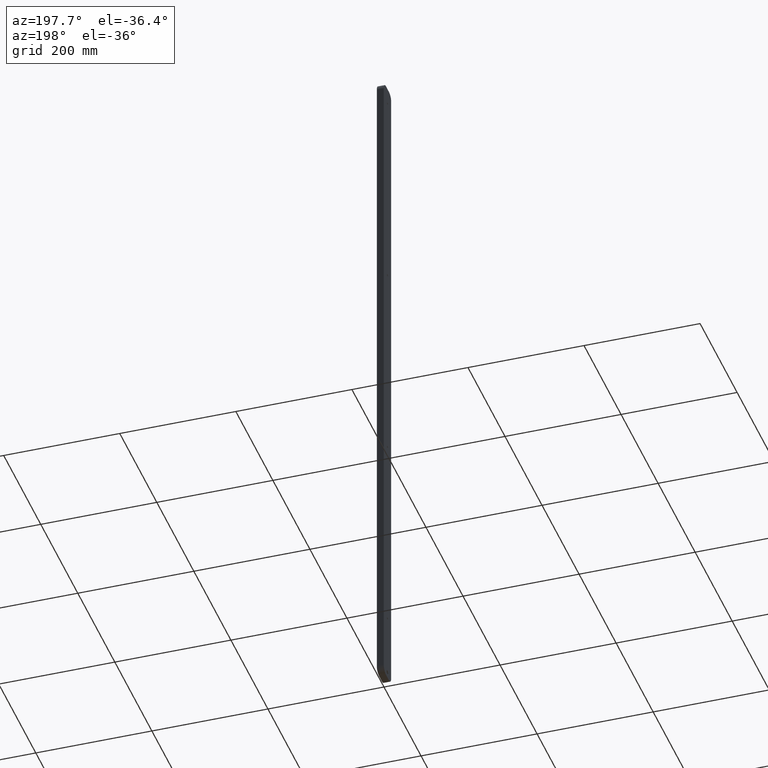
[diagram: clean part render]
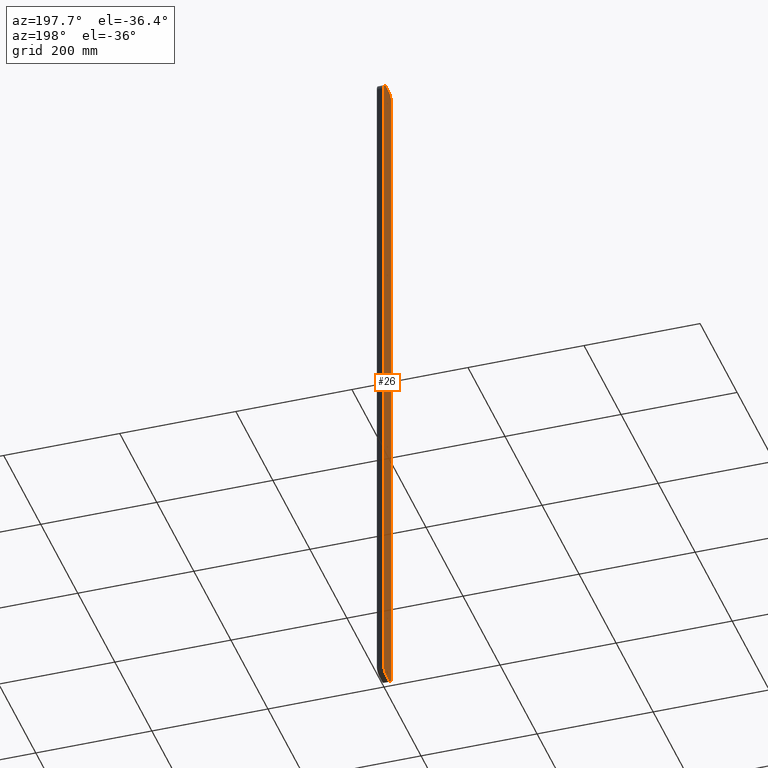
[diagram: same view with one face highlighted and labeled with its STEP entity id]
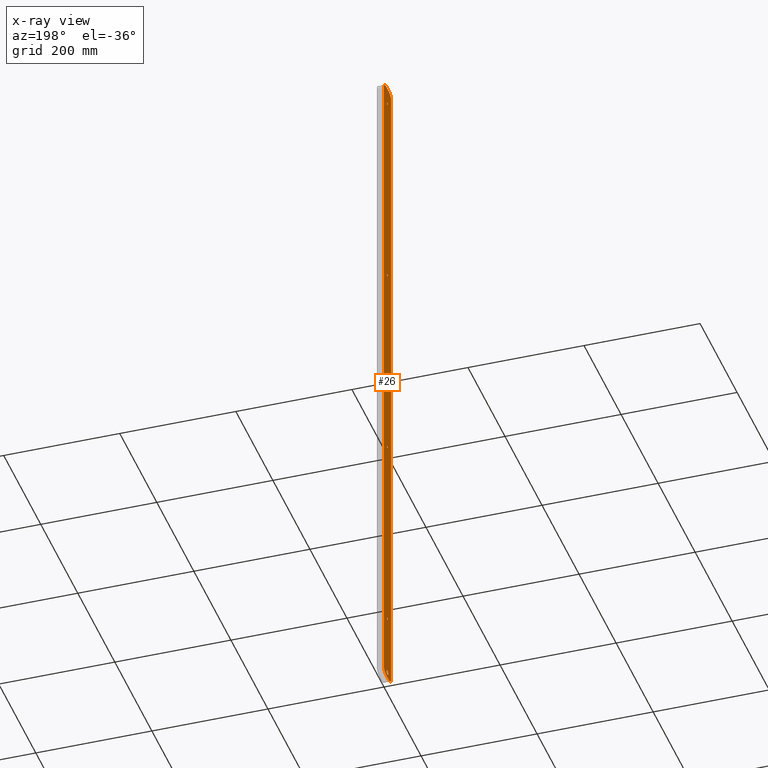
[diagram: x-ray of the same camera — body ghosted, the highlighted face saturated]
A machine part, auxiliary view. The second image highlights one B-rep face of the part: STEP entity #26.
The next image is the same camera in x-ray: the body ghosted, the highlighted face saturated — about 0% of this face is hidden behind the body in this view.
In plain terms, the highlighted planar face has unit normal (1, 0, -0).
Its self-contained STEP definition (entity closure, byte-faithful):
#4 = AXIS2_PLACEMENT_3D ( 'NONE', #446, #488, #582 ) ;
#9 = AXIS2_PLACEMENT_3D ( 'NONE', #888, #763, #761 ) ;
#20 = AXIS2_PLACEMENT_3D ( 'NONE', #587, #573, #344 ) ;
#24 = CIRCLE ( 'NONE', #749, 12.00000000000000000 ) ;
#26 = ADVANCED_FACE ( 'NONE', ( #642, #796, #862, #837, #693, #780 ), #193, .F. ) ;
#31 = CARTESIAN_POINT ( 'NONE',  ( -5.999999999999997300, 8.000000000000000000, -600.0000000000000000 ) ) ;
#39 = AXIS2_PLACEMENT_3D ( 'NONE', #64, #412, #315 ) ;
#50 = DIRECTION ( 'NONE',  ( -1.000000000000000000, -1.301042606982605300E-016, 0.0000000000000000000 ) ) ;
#55 = VECTOR ( 'NONE', #217, 1000.000000000000000 ) ;
#56 = CARTESIAN_POINT ( 'NONE',  ( -5.999999999999996400, -5.356962043600925000E-016, -132.0000000000000000 ) ) ;
#59 = CIRCLE ( 'NONE', #561, 2.000000000000001800 ) ;
#64 = CARTESIAN_POINT ( 'NONE',  ( -5.999999999999999100, 20.00000000000000000, 600.0000000000000000 ) ) ;
#71 = CARTESIAN_POINT ( 'NONE',  ( -5.999999999999993800, -20.00000000000000000, -588.0000000000000000 ) ) ;
#73 = DIRECTION ( 'NONE',  ( -1.445602896647339200E-016, 1.000000000000000000, 0.0000000000000000000 ) ) ;
#80 = CARTESIAN_POINT ( 'NONE',  ( -5.999999999999995600, -3.999999999999993300, -590.0000000000000000 ) ) ;
#81 = VERTEX_POINT ( 'NONE', #31 ) ;
#88 = DIRECTION ( 'NONE',  ( -1.000000000000000000, -1.301042606982605300E-016, 0.0000000000000000000 ) ) ;
#90 = DIRECTION ( 'NONE',  ( 0.0000000000000000000, 0.0000000000000000000, 1.000000000000000000 ) ) ;
#93 = DIRECTION ( 'NONE',  ( 1.301042606982605300E-016, -1.000000000000000000, 0.0000000000000000000 ) ) ;
#106 = VECTOR ( 'NONE', #758, 1000.000000000000000 ) ;
#108 = LINE ( 'NONE', #337, #106 ) ;
#117 = VERTEX_POINT ( 'NONE', #580 ) ;
#131 = LINE ( 'NONE', #163, #612 ) ;
#138 = CARTESIAN_POINT ( 'NONE',  ( -5.999999999999996400, -7.806255641895627000E-016, -477.9999999999998900 ) ) ;
#142 = CIRCLE ( 'NONE', #678, 2.000000000000001800 ) ;
#144 = CIRCLE ( 'NONE', #250, 2.000000000000001800 ) ;
#150 = DIRECTION ( 'NONE',  ( -1.000000000000000000, -0.0000000000000000000, -0.0000000000000000000 ) ) ;
#155 = CIRCLE ( 'NONE', #785, 12.00000000000000000 ) ;
#156 = ORIENTED_EDGE ( 'NONE', *, *, #536, .F. ) ;
#163 = CARTESIAN_POINT ( 'NONE',  ( -5.999999999999999100, 20.00000000000000000, 600.0000000000000000 ) ) ;
#182 = CIRCLE ( 'NONE', #4, 2.000000000000001800 ) ;
#191 = EDGE_CURVE ( 'NONE', #547, #117, #828, .T. ) ;
#193 = PLANE ( 'NONE',  #39 ) ;
#195 = CARTESIAN_POINT ( 'NONE',  ( -5.999999999999996400, -7.806255641895628000E-016, -590.0000000000000000 ) ) ;
#198 = EDGE_CURVE ( 'NONE', #586, #356, #743, .T. ) ;
#214 = CARTESIAN_POINT ( 'NONE',  ( -5.999999999999996400, -7.806255641895627000E-016, 572.0000000000000000 ) ) ;
#217 = DIRECTION ( 'NONE',  ( -0.0000000000000000000, -0.0000000000000000000, -1.000000000000000000 ) ) ;
#220 = DIRECTION ( 'NONE',  ( -1.000000000000000000, -1.301042606982605300E-016, 0.0000000000000000000 ) ) ;
#225 = DIRECTION ( 'NONE',  ( -2.168404344971013100E-016, 1.000000000000000000, 0.0000000000000000000 ) ) ;
#233 = LINE ( 'NONE', #450, #55 ) ;
#246 = CIRCLE ( 'NONE', #258, 2.000000000000001800 ) ;
#250 = AXIS2_PLACEMENT_3D ( 'NONE', #404, #551, #646 ) ;
#253 = VERTEX_POINT ( 'NONE', #663 ) ;
#258 = AXIS2_PLACEMENT_3D ( 'NONE', #876, #451, #90 ) ;
#259 = CARTESIAN_POINT ( 'NONE',  ( -5.999999999999995600, -8.000000000000000000, 588.0000000000000000 ) ) ;
#269 = ORIENTED_EDGE ( 'NONE', *, *, #499, .F. ) ;
#285 = CIRCLE ( 'NONE', #650, 2.000000000000001800 ) ;
#289 = DIRECTION ( 'NONE',  ( -2.168404344971013100E-016, 1.000000000000000000, 0.0000000000000000000 ) ) ;
#300 = CARTESIAN_POINT ( 'NONE',  ( -5.999999999999999100, 20.00000000000000000, -600.0000000000000000 ) ) ;
#304 = ORIENTED_EDGE ( 'NONE', *, *, #198, .F. ) ;
#311 = EDGE_CURVE ( 'NONE', #570, #611, #142, .T. ) ;
#314 = EDGE_CURVE ( 'NONE', #547, #716, #108, .T. ) ;
#315 = DIRECTION ( 'NONE',  ( -1.301042606982605300E-016, 1.000000000000000000, 0.0000000000000000000 ) ) ;
#321 = EDGE_CURVE ( 'NONE', #611, #570, #144, .T. ) ;
#325 = VERTEX_POINT ( 'NONE', #214 ) ;
#334 = VERTEX_POINT ( 'NONE', #891 ) ;
#336 = ORIENTED_EDGE ( 'NONE', *, *, #369, .F. ) ;
#337 = CARTESIAN_POINT ( 'NONE',  ( -5.999999999999999100, 20.00000000000000000, 600.0000000000000000 ) ) ;
#338 = ORIENTED_EDGE ( 'NONE', *, *, #530, .F. ) ;
#339 = DIRECTION ( 'NONE',  ( 0.0000000000000000000, 0.0000000000000000000, 1.000000000000000000 ) ) ;
#344 = DIRECTION ( 'NONE',  ( 0.0000000000000000000, 0.0000000000000000000, 1.000000000000000000 ) ) ;
#356 = VERTEX_POINT ( 'NONE', #483 ) ;
#362 = EDGE_CURVE ( 'NONE', #428, #716, #24, .T. ) ;
#369 = EDGE_CURVE ( 'NONE', #325, #746, #59, .T. ) ;
#382 = CARTESIAN_POINT ( 'NONE',  ( -5.999999999999993800, -20.00000000000000000, 588.0000000000000000 ) ) ;
#388 = EDGE_LOOP ( 'NONE', ( #424, #156 ) ) ;
#396 = ORIENTED_EDGE ( 'NONE', *, *, #314, .F. ) ;
#404 = CARTESIAN_POINT ( 'NONE',  ( -5.999999999999996400, -7.806255641895627000E-016, -130.0000000000000000 ) ) ;
#405 = ORIENTED_EDGE ( 'NONE', *, *, #608, .T. ) ;
#411 = EDGE_LOOP ( 'NONE', ( #602, #269 ) ) ;
#412 = DIRECTION ( 'NONE',  ( 1.000000000000000000, 1.301042606982605300E-016, -0.0000000000000000000 ) ) ;
#414 = ORIENTED_EDGE ( 'NONE', *, *, #502, .F. ) ;
#415 = DIRECTION ( 'NONE',  ( -1.000000000000000000, -0.0000000000000000000, -0.0000000000000000000 ) ) ;
#416 = VERTEX_POINT ( 'NONE', #71 ) ;
#418 = DIRECTION ( 'NONE',  ( 0.0000000000000000000, 0.0000000000000000000, 1.000000000000000000 ) ) ;
#424 = ORIENTED_EDGE ( 'NONE', *, *, #493, .F. ) ;
#427 = VERTEX_POINT ( 'NONE', #592 ) ;
#428 = VERTEX_POINT ( 'NONE', #382 ) ;
#434 = DIRECTION ( 'NONE',  ( -1.000000000000000000, -0.0000000000000000000, -0.0000000000000000000 ) ) ;
#443 = EDGE_CURVE ( 'NONE', #786, #416, #155, .T. ) ;
#445 = ORIENTED_EDGE ( 'NONE', *, *, #717, .T. ) ;
#446 = CARTESIAN_POINT ( 'NONE',  ( -5.999999999999996400, -7.806255641895627000E-016, 570.0000000000000000 ) ) ;
#449 = CARTESIAN_POINT ( 'NONE',  ( -5.999999999999996400, -5.356962043600925000E-016, 568.0000000000000000 ) ) ;
#450 = CARTESIAN_POINT ( 'NONE',  ( -5.999999999999993800, -20.00000000000000000, 600.0000000000000000 ) ) ;
#451 = DIRECTION ( 'NONE',  ( -1.000000000000000000, -0.0000000000000000000, -0.0000000000000000000 ) ) ;
#460 = ORIENTED_EDGE ( 'NONE', *, *, #443, .T. ) ;
#462 = DIRECTION ( 'NONE',  ( -0.0000000000000000000, -0.0000000000000000000, -1.000000000000000000 ) ) ;
#471 = DIRECTION ( 'NONE',  ( -1.000000000000000000, -1.301042606982605300E-016, 0.0000000000000000000 ) ) ;
#475 = EDGE_LOOP ( 'NONE', ( #336, #414 ) ) ;
#483 = CARTESIAN_POINT ( 'NONE',  ( -5.999999999999996400, -5.356962043600925000E-016, -481.9999999999998900 ) ) ;
#487 = CARTESIAN_POINT ( 'NONE',  ( -5.999999999999996400, -7.806255641895627000E-016, 570.0000000000000000 ) ) ;
#488 = DIRECTION ( 'NONE',  ( -1.000000000000000000, -0.0000000000000000000, -0.0000000000000000000 ) ) ;
#493 = EDGE_CURVE ( 'NONE', #721, #782, #626, .T. ) ;
#499 = EDGE_CURVE ( 'NONE', #253, #427, #285, .T. ) ;
#502 = EDGE_CURVE ( 'NONE', #746, #325, #182, .T. ) ;
#505 = CARTESIAN_POINT ( 'NONE',  ( -5.999999999999997300, 8.000000000000000000, -588.0000000000000000 ) ) ;
#516 = CARTESIAN_POINT ( 'NONE',  ( -5.999999999999997300, 3.999999999999991600, -590.0000000000000000 ) ) ;
#519 = CIRCLE ( 'NONE', #603, 12.00000000000000000 ) ;
#522 = CARTESIAN_POINT ( 'NONE',  ( -5.999999999999996400, -7.806255641895627000E-016, -128.0000000000000000 ) ) ;
#530 = EDGE_CURVE ( 'NONE', #356, #586, #607, .T. ) ;
#536 = EDGE_CURVE ( 'NONE', #782, #721, #811, .T. ) ;
#542 = EDGE_LOOP ( 'NONE', ( #396, #544, #877, #445, #405, #460, #552, #822 ) ) ;
#544 = ORIENTED_EDGE ( 'NONE', *, *, #191, .T. ) ;
#547 = VERTEX_POINT ( 'NONE', #793 ) ;
#551 = DIRECTION ( 'NONE',  ( -1.000000000000000000, -0.0000000000000000000, -0.0000000000000000000 ) ) ;
#552 = ORIENTED_EDGE ( 'NONE', *, *, #596, .F. ) ;
#561 = AXIS2_PLACEMENT_3D ( 'NONE', #487, #415, #895 ) ;
#570 = VERTEX_POINT ( 'NONE', #56 ) ;
#573 = DIRECTION ( 'NONE',  ( -1.000000000000000000, -0.0000000000000000000, -0.0000000000000000000 ) ) ;
#580 = CARTESIAN_POINT ( 'NONE',  ( -5.999999999999999100, 20.00000000000000000, 588.0000000000000000 ) ) ;
#582 = DIRECTION ( 'NONE',  ( 0.0000000000000000000, 0.0000000000000000000, 1.000000000000000000 ) ) ;
#585 = AXIS2_PLACEMENT_3D ( 'NONE', #733, #714, #418 ) ;
#586 = VERTEX_POINT ( 'NONE', #138 ) ;
#587 = CARTESIAN_POINT ( 'NONE',  ( -5.999999999999996400, -7.806255641895627000E-016, -479.9999999999998900 ) ) ;
#592 = CARTESIAN_POINT ( 'NONE',  ( -5.999999999999996400, -7.806255641895627000E-016, 221.9999999999999700 ) ) ;
#596 = EDGE_CURVE ( 'NONE', #428, #416, #233, .T. ) ;
#602 = ORIENTED_EDGE ( 'NONE', *, *, #826, .F. ) ;
#603 = AXIS2_PLACEMENT_3D ( 'NONE', #505, #220, #730 ) ;
#604 = CARTESIAN_POINT ( 'NONE',  ( -5.999999999999995600, -8.000000000000000000, 600.0000000000000000 ) ) ;
#606 = VECTOR ( 'NONE', #93, 1000.000000000000000 ) ;
#607 = CIRCLE ( 'NONE', #585, 2.000000000000001800 ) ;
#608 = EDGE_CURVE ( 'NONE', #81, #786, #665, .T. ) ;
#610 = ORIENTED_EDGE ( 'NONE', *, *, #311, .F. ) ;
#611 = VERTEX_POINT ( 'NONE', #522 ) ;
#612 = VECTOR ( 'NONE', #462, 1000.000000000000000 ) ;
#613 = AXIS2_PLACEMENT_3D ( 'NONE', #861, #851, #289 ) ;
#621 = CARTESIAN_POINT ( 'NONE',  ( -5.999999999999996400, -7.806255641895627000E-016, -130.0000000000000000 ) ) ;
#626 = CIRCLE ( 'NONE', #613, 3.999999999999992500 ) ;
#628 = DIRECTION ( 'NONE',  ( -1.445602896647339200E-016, 1.000000000000000000, 0.0000000000000000000 ) ) ;
#642 = FACE_BOUND ( 'NONE', #411, .T. ) ;
#646 = DIRECTION ( 'NONE',  ( 0.0000000000000000000, 0.0000000000000000000, 1.000000000000000000 ) ) ;
#650 = AXIS2_PLACEMENT_3D ( 'NONE', #744, #150, #339 ) ;
#663 = CARTESIAN_POINT ( 'NONE',  ( -5.999999999999996400, -5.356962043600925000E-016, 217.9999999999999700 ) ) ;
#665 = LINE ( 'NONE', #300, #606 ) ;
#674 = CARTESIAN_POINT ( 'NONE',  ( -5.999999999999995600, -8.000000000000000000, -588.0000000000000000 ) ) ;
#678 = AXIS2_PLACEMENT_3D ( 'NONE', #621, #434, #911 ) ;
#693 = FACE_BOUND ( 'NONE', #737, .T. ) ;
#714 = DIRECTION ( 'NONE',  ( -1.000000000000000000, -0.0000000000000000000, -0.0000000000000000000 ) ) ;
#716 = VERTEX_POINT ( 'NONE', #604 ) ;
#717 = EDGE_CURVE ( 'NONE', #334, #81, #519, .T. ) ;
#721 = VERTEX_POINT ( 'NONE', #516 ) ;
#730 = DIRECTION ( 'NONE',  ( -1.445602896647339200E-016, 1.000000000000000000, 0.0000000000000000000 ) ) ;
#733 = CARTESIAN_POINT ( 'NONE',  ( -5.999999999999996400, -7.806255641895627000E-016, -479.9999999999998900 ) ) ;
#737 = EDGE_LOOP ( 'NONE', ( #824, #610 ) ) ;
#738 = CARTESIAN_POINT ( 'NONE',  ( -5.999999999999995600, -8.000000000000000000, -600.0000000000000000 ) ) ;
#743 = CIRCLE ( 'NONE', #20, 2.000000000000001800 ) ;
#744 = CARTESIAN_POINT ( 'NONE',  ( -5.999999999999996400, -7.806255641895627000E-016, 219.9999999999999700 ) ) ;
#746 = VERTEX_POINT ( 'NONE', #449 ) ;
#749 = AXIS2_PLACEMENT_3D ( 'NONE', #259, #471, #628 ) ;
#758 = DIRECTION ( 'NONE',  ( 1.301042606982605300E-016, -1.000000000000000000, 0.0000000000000000000 ) ) ;
#761 = DIRECTION ( 'NONE',  ( -1.445602896647339200E-016, 1.000000000000000000, 0.0000000000000000000 ) ) ;
#763 = DIRECTION ( 'NONE',  ( -1.000000000000000000, -1.301042606982605300E-016, 0.0000000000000000000 ) ) ;
#780 = FACE_BOUND ( 'NONE', #809, .T. ) ;
#782 = VERTEX_POINT ( 'NONE', #80 ) ;
#785 = AXIS2_PLACEMENT_3D ( 'NONE', #674, #88, #73 ) ;
#786 = VERTEX_POINT ( 'NONE', #738 ) ;
#793 = CARTESIAN_POINT ( 'NONE',  ( -5.999999999999997300, 8.000000000000000000, 600.0000000000000000 ) ) ;
#796 = FACE_OUTER_BOUND ( 'NONE', #542, .T. ) ;
#809 = EDGE_LOOP ( 'NONE', ( #304, #338 ) ) ;
#811 = CIRCLE ( 'NONE', #856, 3.999999999999992500 ) ;
#822 = ORIENTED_EDGE ( 'NONE', *, *, #362, .T. ) ;
#824 = ORIENTED_EDGE ( 'NONE', *, *, #321, .F. ) ;
#826 = EDGE_CURVE ( 'NONE', #427, #253, #246, .T. ) ;
#828 = CIRCLE ( 'NONE', #9, 12.00000000000000000 ) ;
#837 = FACE_BOUND ( 'NONE', #475, .T. ) ;
#851 = DIRECTION ( 'NONE',  ( -1.000000000000000000, -1.301042606982605300E-016, 0.0000000000000000000 ) ) ;
#856 = AXIS2_PLACEMENT_3D ( 'NONE', #195, #50, #225 ) ;
#861 = CARTESIAN_POINT ( 'NONE',  ( -5.999999999999996400, -7.806255641895628000E-016, -590.0000000000000000 ) ) ;
#862 = FACE_BOUND ( 'NONE', #388, .T. ) ;
#876 = CARTESIAN_POINT ( 'NONE',  ( -5.999999999999996400, -7.806255641895627000E-016, 219.9999999999999700 ) ) ;
#877 = ORIENTED_EDGE ( 'NONE', *, *, #900, .T. ) ;
#888 = CARTESIAN_POINT ( 'NONE',  ( -5.999999999999997300, 8.000000000000000000, 588.0000000000000000 ) ) ;
#891 = CARTESIAN_POINT ( 'NONE',  ( -5.999999999999999100, 20.00000000000000000, -588.0000000000000000 ) ) ;
#895 = DIRECTION ( 'NONE',  ( 0.0000000000000000000, 0.0000000000000000000, 1.000000000000000000 ) ) ;
#900 = EDGE_CURVE ( 'NONE', #117, #334, #131, .T. ) ;
#911 = DIRECTION ( 'NONE',  ( 0.0000000000000000000, 0.0000000000000000000, 1.000000000000000000 ) ) ;